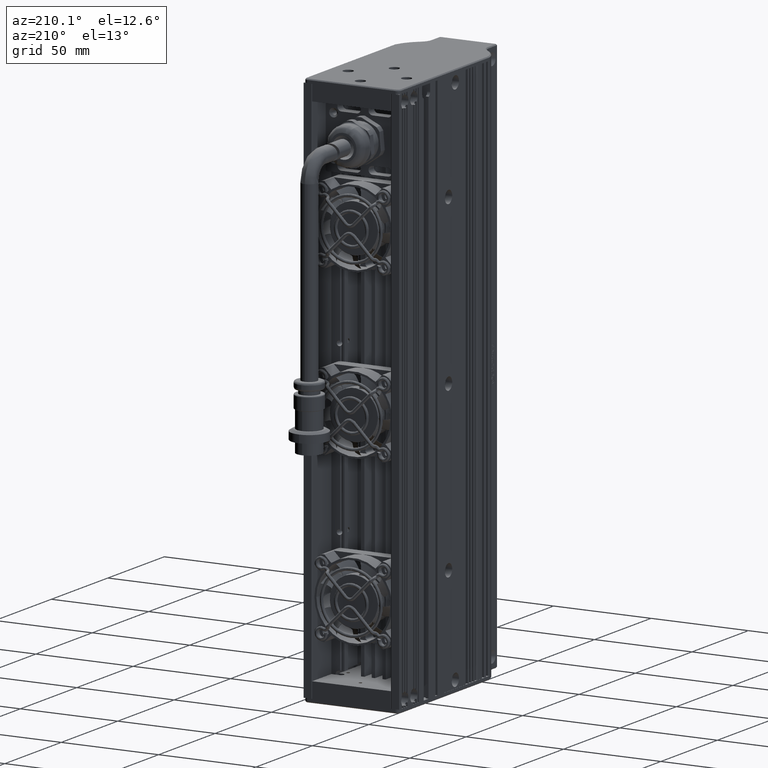
[diagram: clean part render]
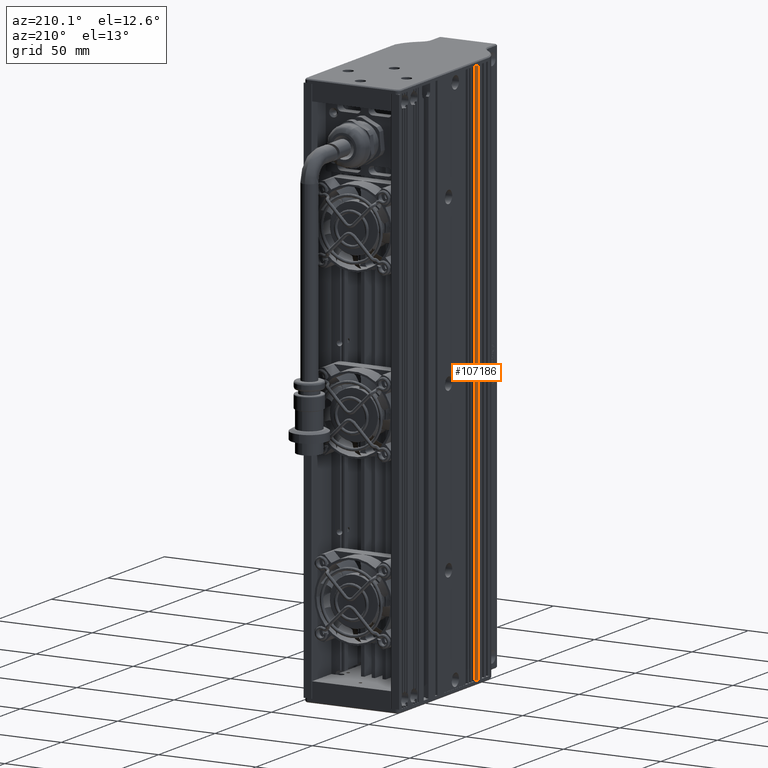
[diagram: same view with one face highlighted and labeled with its STEP entity id]
A machine part, auxiliary view. The second image highlights one B-rep face of the part: STEP entity #107186.
In plain terms, the highlighted cylindrical surface (edge-blend (fillet) strip) has radius 1 mm, axis along (0, 0, 1).
Its self-contained STEP definition (entity closure, byte-faithful):
#7505 = CIRCLE ( 'NONE', #87589, 1.000000000000000900 ) ;
#7628 = DIRECTION ( 'NONE',  ( -0.0000000000000000000, -0.0000000000000000000, -1.000000000000000000 ) ) ;
#14259 = AXIS2_PLACEMENT_3D ( 'NONE', #36179, #7628, #116405 ) ;
#19823 = LINE ( 'NONE', #103942, #53813 ) ;
#21654 = EDGE_CURVE ( 'NONE', #52614, #32384, #50416, .T. ) ;
#32384 = VERTEX_POINT ( 'NONE', #59330 ) ;
#33385 = DIRECTION ( 'NONE',  ( 1.000000000000000000, 0.0000000000000000000, 0.0000000000000000000 ) ) ;
#33570 = CARTESIAN_POINT ( 'NONE',  ( -60.96201180637543600, -24.99547579693032200, -140.0000000000000000 ) ) ;
#36179 = CARTESIAN_POINT ( 'NONE',  ( -60.96201180637543600, -25.99547579693032200, 140.0000000000000000 ) ) ;
#44171 = AXIS2_PLACEMENT_3D ( 'NONE', #118904, #110683, #88951 ) ;
#50416 = CIRCLE ( 'NONE', #14259, 1.000000000000000900 ) ;
#52614 = VERTEX_POINT ( 'NONE', #72320 ) ;
#52899 = DIRECTION ( 'NONE',  ( -0.0000000000000000000, -0.0000000000000000000, -1.000000000000000000 ) ) ;
#53813 = VECTOR ( 'NONE', #93460, 1000.000000000000000 ) ;
#56196 = CYLINDRICAL_SURFACE ( 'NONE', #44171, 1.000000000000000900 ) ;
#57281 = EDGE_CURVE ( 'NONE', #96790, #52614, #19823, .T. ) ;
#59330 = CARTESIAN_POINT ( 'NONE',  ( -60.96201180637543600, -24.99547579693032200, 140.0000000000000000 ) ) ;
#62645 = CARTESIAN_POINT ( 'NONE',  ( -60.96201180637543600, -25.99547579693032200, -140.0000000000000000 ) ) ;
#62797 = EDGE_LOOP ( 'NONE', ( #88922, #104337, #102475, #123150 ) ) ;
#63780 = CARTESIAN_POINT ( 'NONE',  ( -61.96201180637543600, -25.99547579693032200, -140.0000000000000000 ) ) ;
#71069 = VECTOR ( 'NONE', #52899, 1000.000000000000000 ) ;
#71587 = EDGE_CURVE ( 'NONE', #126184, #96790, #7505, .T. ) ;
#72320 = CARTESIAN_POINT ( 'NONE',  ( -61.96201180637543600, -25.99547579693032200, 140.0000000000000000 ) ) ;
#74769 = CARTESIAN_POINT ( 'NONE',  ( -60.96201180637543600, -24.99547579693032200, -140.0000000000000000 ) ) ;
#83590 = EDGE_CURVE ( 'NONE', #32384, #126184, #97355, .T. ) ;
#87589 = AXIS2_PLACEMENT_3D ( 'NONE', #62645, #111934, #33385 ) ;
#88922 = ORIENTED_EDGE ( 'NONE', *, *, #21654, .T. ) ;
#88951 = DIRECTION ( 'NONE',  ( 1.000000000000000000, 0.0000000000000000000, 0.0000000000000000000 ) ) ;
#93460 = DIRECTION ( 'NONE',  ( 0.0000000000000000000, 0.0000000000000000000, 1.000000000000000000 ) ) ;
#96790 = VERTEX_POINT ( 'NONE', #63780 ) ;
#97355 = LINE ( 'NONE', #33570, #71069 ) ;
#102475 = ORIENTED_EDGE ( 'NONE', *, *, #71587, .T. ) ;
#103942 = CARTESIAN_POINT ( 'NONE',  ( -61.96201180637543600, -25.99547579693032200, 140.0000000000000000 ) ) ;
#104337 = ORIENTED_EDGE ( 'NONE', *, *, #83590, .T. ) ;
#107186 = ADVANCED_FACE ( 'NONE', ( #116424 ), #56196, .T. ) ;
#110683 = DIRECTION ( 'NONE',  ( 0.0000000000000000000, 0.0000000000000000000, 1.000000000000000000 ) ) ;
#111934 = DIRECTION ( 'NONE',  ( 0.0000000000000000000, 0.0000000000000000000, 1.000000000000000000 ) ) ;
#116405 = DIRECTION ( 'NONE',  ( 1.000000000000000000, 0.0000000000000000000, 0.0000000000000000000 ) ) ;
#116424 = FACE_OUTER_BOUND ( 'NONE', #62797, .T. ) ;
#118904 = CARTESIAN_POINT ( 'NONE',  ( -60.96201180637543600, -25.99547579693032200, -140.0000000000000000 ) ) ;
#123150 = ORIENTED_EDGE ( 'NONE', *, *, #57281, .T. ) ;
#126184 = VERTEX_POINT ( 'NONE', #74769 ) ;